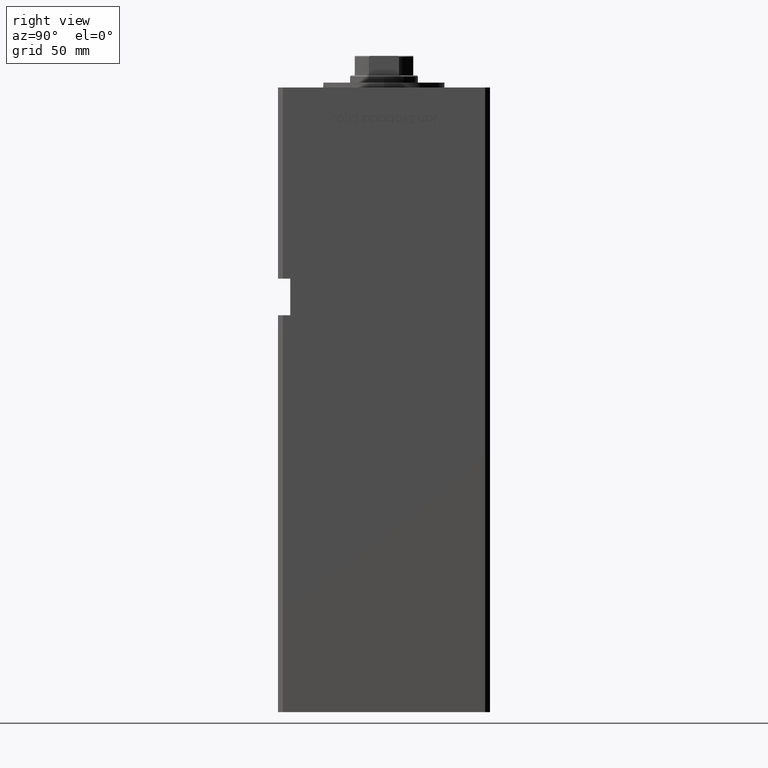
[diagram: clean part render]
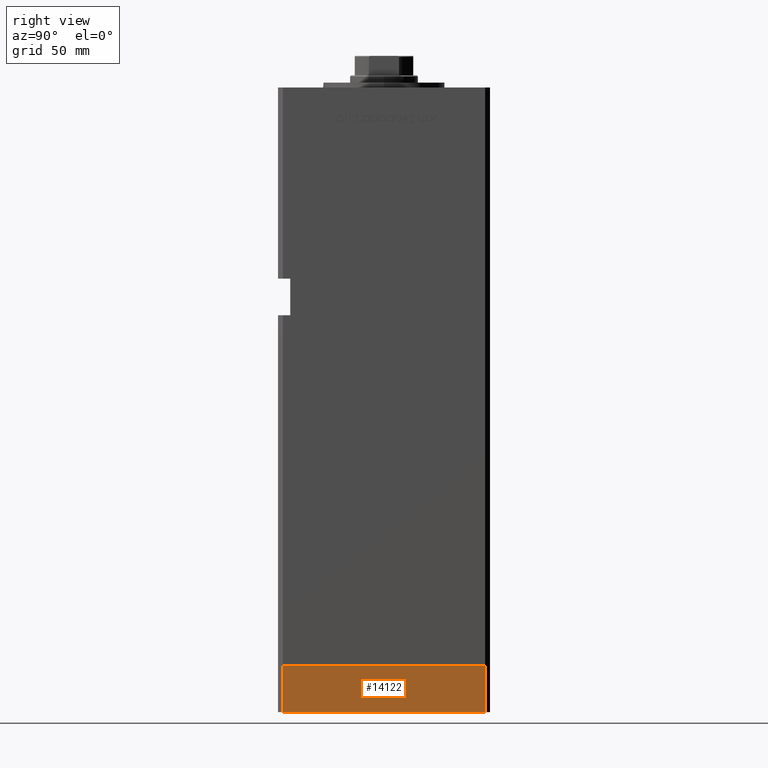
[diagram: same view with one face highlighted and labeled with its STEP entity id]
A machine part, right view. The second image highlights one B-rep face of the part: STEP entity #14122.
In plain terms, the highlighted planar face has unit normal (1, 0, 0).
Its self-contained STEP definition (entity closure, byte-faithful):
#1690 = VERTEX_POINT ( 'NONE', #45061 ) ;
#1767 = CARTESIAN_POINT ( 'NONE',  ( -50.00000000000000711, 41.49999999999995026, 0.000000000000000000 ) ) ;
#2371 = LINE ( 'NONE', #27370, #35049 ) ;
#2735 = CARTESIAN_POINT ( 'NONE',  ( -50.00000000000000711, 41.49999999999995026, -19.00000000000000000 ) ) ;
#3898 = AXIS2_PLACEMENT_3D ( 'NONE', #18776, #14459, #43010 ) ;
#4817 = VECTOR ( 'NONE', #26398, 1000.000000000000000 ) ;
#5781 = DIRECTION ( 'NONE',  ( 8.360113137237628665E-17, -1.000000000000000000, 0.000000000000000000 ) ) ;
#9495 = VERTEX_POINT ( 'NONE', #31344 ) ;
#10148 = PLANE ( 'NONE',  #3898 ) ;
#13897 = EDGE_LOOP ( 'NONE', ( #14362, #22713, #40913, #44836 ) ) ;
#14122 = ADVANCED_FACE ( 'NONE', ( #38424 ), #10148, .T. ) ;
#14362 = ORIENTED_EDGE ( 'NONE', *, *, #25161, .F. ) ;
#14459 = DIRECTION ( 'NONE',  ( -1.000000000000000000, -8.360113137237628665E-17, 0.000000000000000000 ) ) ;
#15895 = EDGE_CURVE ( 'NONE', #1690, #9495, #39591, .T. ) ;
#18554 = VERTEX_POINT ( 'NONE', #25871 ) ;
#18776 = CARTESIAN_POINT ( 'NONE',  ( -50.00000000000000711, 41.49999999999995026, -19.00000000000000000 ) ) ;
#19831 = EDGE_CURVE ( 'NONE', #18554, #27602, #40042, .T. ) ;
#22713 = ORIENTED_EDGE ( 'NONE', *, *, #15895, .F. ) ;
#25161 = EDGE_CURVE ( 'NONE', #9495, #27602, #36103, .T. ) ;
#25871 = CARTESIAN_POINT ( 'NONE',  ( -50.00000000000000000, -41.50000000000000000, -19.00000000000000000 ) ) ;
#26398 = DIRECTION ( 'NONE',  ( 0.000000000000000000, 0.000000000000000000, 1.000000000000000000 ) ) ;
#26579 = EDGE_CURVE ( 'NONE', #1690, #18554, #2371, .T. ) ;
#27370 = CARTESIAN_POINT ( 'NONE',  ( -50.00000000000000711, 41.49999999999995026, -19.00000000000000000 ) ) ;
#27390 = CARTESIAN_POINT ( 'NONE',  ( -50.00000000000000000, -41.50000000000000000, -19.00000000000000000 ) ) ;
#27602 = VERTEX_POINT ( 'NONE', #53078 ) ;
#31344 = CARTESIAN_POINT ( 'NONE',  ( -50.00000000000000711, 41.49999999999995026, 0.000000000000000000 ) ) ;
#31563 = VECTOR ( 'NONE', #35480, 1000.000000000000000 ) ;
#35049 = VECTOR ( 'NONE', #39496, 1000.000000000000000 ) ;
#35480 = DIRECTION ( 'NONE',  ( 0.000000000000000000, 0.000000000000000000, 1.000000000000000000 ) ) ;
#36103 = LINE ( 'NONE', #1767, #52237 ) ;
#38424 = FACE_OUTER_BOUND ( 'NONE', #13897, .T. ) ;
#39496 = DIRECTION ( 'NONE',  ( 8.360113137237628665E-17, -1.000000000000000000, 0.000000000000000000 ) ) ;
#39591 = LINE ( 'NONE', #2735, #4817 ) ;
#40042 = LINE ( 'NONE', #27390, #31563 ) ;
#40913 = ORIENTED_EDGE ( 'NONE', *, *, #26579, .T. ) ;
#43010 = DIRECTION ( 'NONE',  ( 8.360113137237628665E-17, -1.000000000000000000, 0.000000000000000000 ) ) ;
#44836 = ORIENTED_EDGE ( 'NONE', *, *, #19831, .T. ) ;
#45061 = CARTESIAN_POINT ( 'NONE',  ( -50.00000000000000711, 41.49999999999995026, -19.00000000000000000 ) ) ;
#52237 = VECTOR ( 'NONE', #5781, 1000.000000000000000 ) ;
#53078 = CARTESIAN_POINT ( 'NONE',  ( -50.00000000000000000, -41.50000000000000000, 0.000000000000000000 ) ) ;